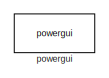
[diagram: root canvas - part 1/2, top right region]
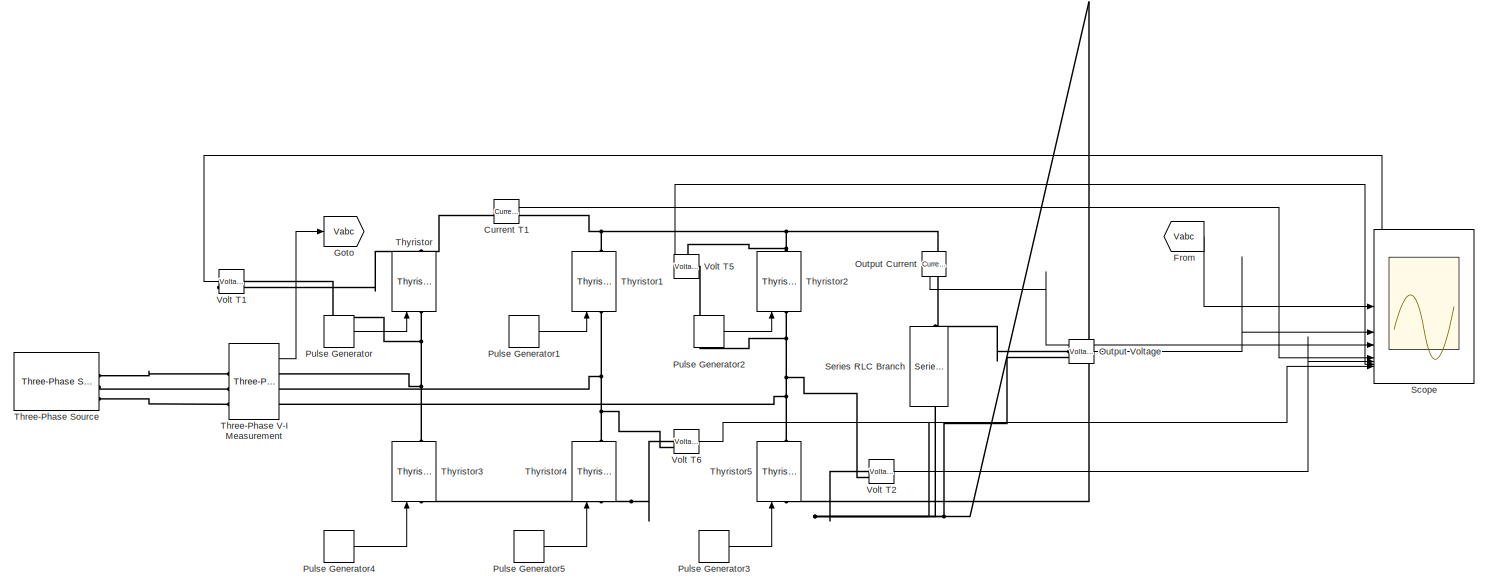
[diagram: root canvas - part 2/2, most of the canvas]
MODEL slx_5813eb56da6b
KIND model
CONFIG AbsTol = auto
CONFIG EnableMultiTasking = off
CONFIG FixedStep = auto
CONFIG MaxStep = auto
CONFIG MinStep = auto
CONFIG RelTol = 1e-3
CONFIG SampleTimeConstraint = Unconstrained
CONFIG SolverName = VariableStepDiscrete
CONFIG StartTime = 0
CONFIG StopTime = 1
BLOCK [Reference] Current T1  REF=spsCurrentMeasurementLib/Current Measurement
  LibrarySourceBlock = sps_lib/Sensors and Measurements/Current Measurement
  SourceBlock = spsCurrentMeasurementLib/Current Measurement
  SourceType = Current Measurement
  UserDataPersistent = on
BLOCK [From] From
  GotoTag = Vabc
BLOCK [Goto] Goto
  GotoTag = Vabc
BLOCK [Reference] Output Current  REF=spsCurrentMeasurementLib/Current Measurement
  LibrarySourceBlock = sps_lib/Sensors and Measurements/Current Measurement
  NameLocation = left
  SourceBlock = spsCurrentMeasurementLib/Current Measurement
  SourceType = Current Measurement
  UserDataPersistent = on
BLOCK [Reference] Output Voltage  REF=spsVoltageMeasurementLib/Voltage Measurement
  LibrarySourceBlock = sps_lib/Sensors and Measurements/Voltage Measurement
  SourceBlock = spsVoltageMeasurementLib/Voltage Measurement
  SourceType = Voltage Measurement
  UserDataPersistent = on
BLOCK [DiscretePulseGenerator] Pulse Generator
  Period = 0.02
  PhaseDelay = (a+30)*0.02/360
  PulseType = Time based
  PulseWidth = 50
BLOCK [DiscretePulseGenerator] Pulse Generator1
  Period = 0.02
  PhaseDelay = (a+150)*0.02/360
  PulseType = Time based
  PulseWidth = 50
BLOCK [DiscretePulseGenerator] Pulse Generator2
  Period = 0.02
  PhaseDelay = (a+270)*0.02/360
  PulseType = Time based
  PulseWidth = 50
BLOCK [DiscretePulseGenerator] Pulse Generator3
  Period = 0.02
  PhaseDelay = (a+90)*0.02/360
  PulseType = Time based
  PulseWidth = 50
BLOCK [DiscretePulseGenerator] Pulse Generator4
  Period = 0.02
  PhaseDelay = (a+210)*0.02/360
  PulseType = Time based
  PulseWidth = 50
BLOCK [DiscretePulseGenerator] Pulse Generator5
  Period = 0.02
  PhaseDelay = (a+330)*0.02/360
  PulseType = Time based
  PulseWidth = 50
BLOCK [Scope] Scope
  Floating = off
  NumInputPorts = 8
  ScopeSpecificationString = Simulink.scopes.TimeScopeBlockCfg('CurrentConfiguration', extmgr.ConfigurationSet(extmgr.Configuration('Core','General UI',true),extmgr.Configuration('Core','Source UI',true),extmgr.Configuration('Sources','WiredSimulink',true),extmgr.Configuration('Visuals','Time Domain',true,'SerializedDisplays',{struct('MinYLimReal','-489.89795','MaxYLimReal','437.93908','YLabelReal','','MinYLimMag',' 0.00000',...<+6756ch>
BLOCK [Reference] Series RLC Branch  REF=spsSeriesRLCBranchLib/Series RLC Branch
  LibrarySourceBlock = sps_lib/Passives/Series RLC Branch
  NameLocation = left
  SourceBlock = spsSeriesRLCBranchLib/Series RLC Branch
  SourceType = Series RLC Branch
BLOCK [Reference] Three-Phase Source  REF=spsThreePhaseSourceLib/Three-Phase Source
  LibrarySourceBlock = sps_lib/Sources/Three-Phase Source
  SourceBlock = spsThreePhaseSourceLib/Three-Phase Source
  SourceType = Three-Phase Source
BLOCK [Reference] Three-Phase V-I Measurement  REF=spsThreePhaseVIMeasurementLib/Three-Phase
V-I Measurement
  LibrarySourceBlock = sps_lib/Sensors and Measurements/Three-Phase\nV-I Measurement
  SourceBlock = spsThreePhaseVIMeasurementLib/Three-Phase\nV-I Measurement
  SourceType = Three-Phase VI Measurement
BLOCK [Reference] Thyristor  REF=spsThyristorLib/Thyristor
  LibrarySourceBlock = sps_lib/Power Electronics/Thyristor
  NameLocation = right
  SourceBlock = spsThyristorLib/Thyristor
  SourceType = Thyristor
BLOCK [Reference] Thyristor1  REF=spsThyristorLib/Thyristor
  LibrarySourceBlock = sps_lib/Power Electronics/Thyristor
  NameLocation = right
  SourceBlock = spsThyristorLib/Thyristor
  SourceType = Thyristor
BLOCK [Reference] Thyristor2  REF=spsThyristorLib/Thyristor
  LibrarySourceBlock = sps_lib/Power Electronics/Thyristor
  NameLocation = right
  SourceBlock = spsThyristorLib/Thyristor
  SourceType = Thyristor
BLOCK [Reference] Thyristor3  REF=spsThyristorLib/Thyristor
  LibrarySourceBlock = sps_lib/Power Electronics/Thyristor
  NameLocation = right
  SourceBlock = spsThyristorLib/Thyristor
  SourceType = Thyristor
BLOCK [Reference] Thyristor4  REF=spsThyristorLib/Thyristor
  LibrarySourceBlock = sps_lib/Power Electronics/Thyristor
  NameLocation = right
  SourceBlock = spsThyristorLib/Thyristor
  SourceType = Thyristor
BLOCK [Reference] Thyristor5  REF=spsThyristorLib/Thyristor
  LibrarySourceBlock = sps_lib/Power Electronics/Thyristor
  NameLocation = right
  SourceBlock = spsThyristorLib/Thyristor
  SourceType = Thyristor
BLOCK [Reference] Volt T1  REF=spsVoltageMeasurementLib/Voltage Measurement
  LibrarySourceBlock = sps_lib/Sensors and Measurements/Voltage Measurement
  NameLocation = top
  SourceBlock = spsVoltageMeasurementLib/Voltage Measurement
  SourceType = Voltage Measurement
  UserDataPersistent = on
BLOCK [Reference] Volt T2  REF=spsVoltageMeasurementLib/Voltage Measurement
  LibrarySourceBlock = sps_lib/Sensors and Measurements/Voltage Measurement
  SourceBlock = spsVoltageMeasurementLib/Voltage Measurement
  SourceType = Voltage Measurement
  UserDataPersistent = on
BLOCK [Reference] Volt T5  REF=spsVoltageMeasurementLib/Voltage Measurement
  LibrarySourceBlock = sps_lib/Sensors and Measurements/Voltage Measurement
  NameLocation = top
  SourceBlock = spsVoltageMeasurementLib/Voltage Measurement
  SourceType = Voltage Measurement
  UserDataPersistent = on
BLOCK [Reference] Volt T6  REF=spsVoltageMeasurementLib/Voltage Measurement
  LibrarySourceBlock = sps_lib/Sensors and Measurements/Voltage Measurement
  SourceBlock = spsVoltageMeasurementLib/Voltage Measurement
  SourceType = Voltage Measurement
  UserDataPersistent = on
BLOCK [Reference] powergui  REF=sps_lib/powergui
  LibrarySourceBlock = sps_lib/powergui
  Priority = 1
  SourceBlock = sps_lib/powergui
  SourceType = PSB option menu block
LINE Current T1:1 -> Scope:5
LINE From:1 -> Scope:1
LINE Output Current:1 -> Scope:3
LINE Output Voltage:1 -> Scope:2
LINE Pulse Generator1:1 -> Thyristor1:1
LINE Pulse Generator2:1 -> Thyristor2:1
LINE Pulse Generator3:1 -> Thyristor5:1
LINE Pulse Generator4:1 -> Thyristor3:1
LINE Pulse Generator5:1 -> Thyristor4:1
LINE Pulse Generator:1 -> Thyristor:1
LINE Three-Phase V-I Measurement:1 -> Goto:1
LINE Volt T1:1 -> Scope:4
LINE Volt T2:1 -> Scope:6
LINE Volt T5:1 -> Scope:7
LINE Volt T6:1 -> Scope:8
PNET net1: Current T1:LConn1 -- Thyristor:RConn1 -- Volt T1:LConn2
PNET net2: Current T1:RConn1 -- Output Current:LConn1 -- Thyristor1:RConn1 -- Thyristor2:RConn1 -- Volt T5:LConn2
PNET net3: Output Current:RConn1 -- Output Voltage:LConn1 -- Series RLC Branch:LConn1
PNET net4: Output Voltage:LConn2 -- Series RLC Branch:RConn1 -- Thyristor3:LConn1 -- Thyristor4:LConn1 -- Thyristor5:LConn1 -- Volt T2:LConn1 -- Volt T6:LConn1
PLINE Three-Phase Source:RConn1 -- Three-Phase V-I Measurement:LConn1
PLINE Three-Phase Source:RConn2 -- Three-Phase V-I Measurement:LConn2
PLINE Three-Phase Source:RConn3 -- Three-Phase V-I Measurement:LConn3
PNET net5: Three-Phase V-I Measurement:RConn1 -- Thyristor3:RConn1 -- Thyristor:LConn1 -- Volt T1:LConn1
PNET net6: Three-Phase V-I Measurement:RConn2 -- Thyristor1:LConn1 -- Thyristor4:RConn1 -- Volt T6:LConn2
PNET net7: Three-Phase V-I Measurement:RConn3 -- Thyristor2:LConn1 -- Thyristor5:RConn1 -- Volt T2:LConn2 -- Volt T5:LConn1
note: PNET lines group multi-terminal physical nets as a canonical sorted terminal list (undirected conserving connections); 2-terminal nets keep the pairwise PLINE form
